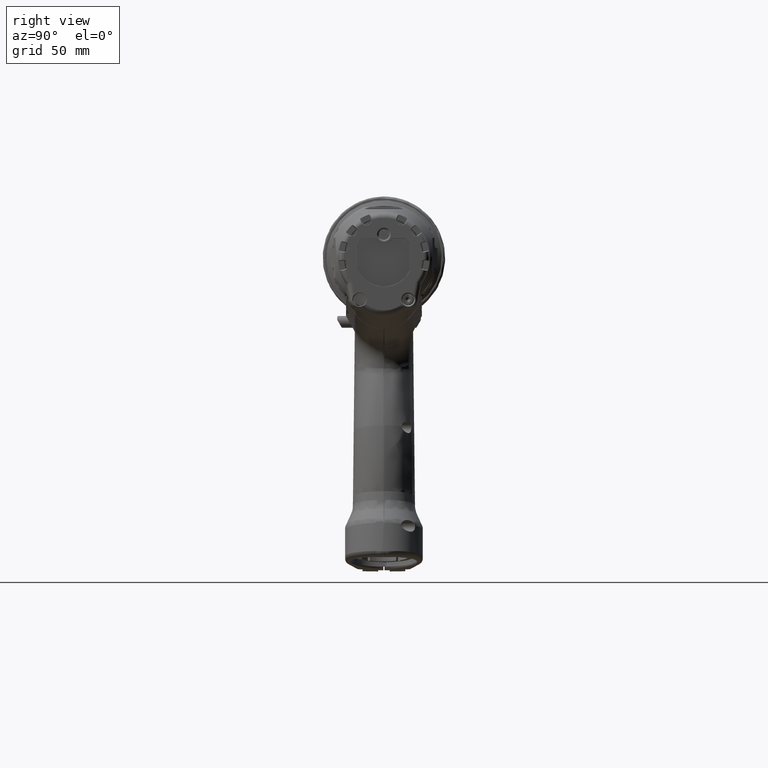
[diagram: clean part render]
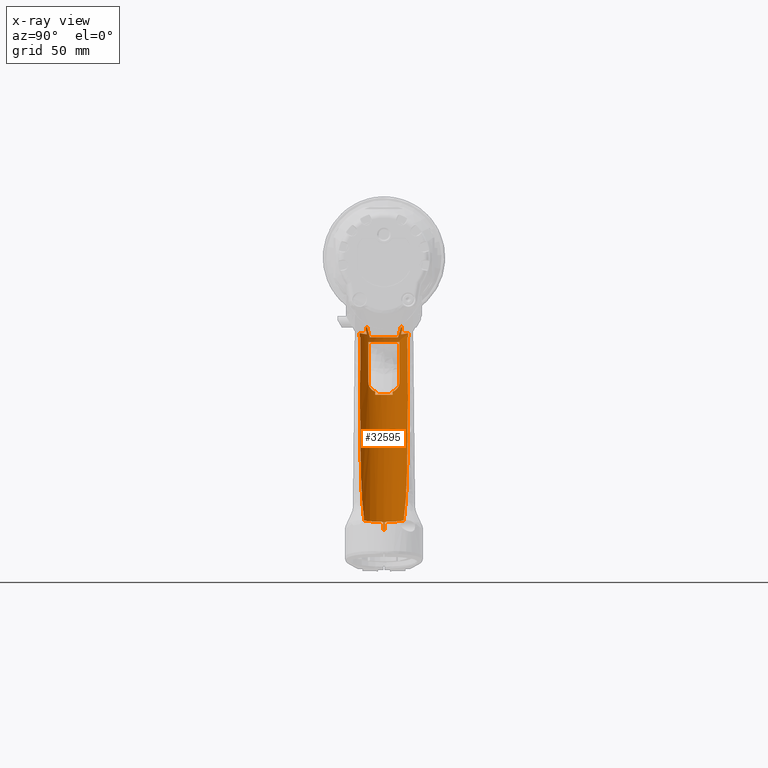
[diagram: x-ray — body ghosted, one internal face saturated and labeled with its STEP entity id]
A machine part, right view, then the same camera in x-ray: the body is ghosted and one INTERNAL B-rep face — a face not visible from any outside direction — is saturated and labeled: STEP entity #32595.
In plain terms, the highlighted cylindrical surface (edge-blend (fillet) strip) has radius 15 mm, axis along (-0.1736, -0, 0.9848).
Its self-contained STEP definition (entity closure, byte-faithful):
#444=ELLIPSE('',#34494,86.3815572471534,15.);
#445=ELLIPSE('',#34498,15.2313991782862,15.);
#446=ELLIPSE('',#34500,86.3815572471534,15.);
#449=ELLIPSE('',#34519,15.2313991782882,15.);
#450=ELLIPSE('',#34534,15.2313991782882,15.);
#451=ELLIPSE('',#34564,86.3815572471524,15.);
#452=ELLIPSE('',#34566,15.2313991782862,15.);
#453=ELLIPSE('',#34567,1401.37150129969,15.);
#454=ELLIPSE('',#34571,1401.3715012996,15.);
#455=ELLIPSE('',#34572,15.2313991782862,15.);
#456=ELLIPSE('',#34574,86.3815572471524,15.);
#550=FACE_BOUND('',#8092,.T.);
#551=FACE_BOUND('',#8093,.T.);
#686=CYLINDRICAL_SURFACE('',#34563,15.);
#1636=LINE('',#50090,#3619);
#1642=LINE('',#50115,#3625);
#1668=LINE('',#50191,#3651);
#1672=LINE('',#50211,#3655);
#1718=LINE('',#50606,#3701);
#1719=LINE('',#50630,#3702);
#1720=LINE('',#50634,#3703);
#1721=LINE('',#50656,#3704);
#1722=LINE('',#50708,#3705);
#1723=LINE('',#50710,#3706);
#1724=LINE('',#50747,#3707);
#1725=LINE('',#50748,#3708);
#3619=VECTOR('',#37961,10.);
#3625=VECTOR('',#37973,10.);
#3651=VECTOR('',#38023,10.);
#3655=VECTOR('',#38033,10.);
#3701=VECTOR('',#38133,10.);
#3702=VECTOR('',#38140,10.);
#3703=VECTOR('',#38143,10.);
#3704=VECTOR('',#38150,10.);
#3705=VECTOR('',#38155,10.);
#3706=VECTOR('',#38156,10.);
#3707=VECTOR('',#38157,10.);
#3708=VECTOR('',#38158,10.);
#6290=FACE_OUTER_BOUND('',#8091,.T.);
#8091=EDGE_LOOP('',(#21379,#21380,#21381,#21382,#21383,#21384,#21385,#21386,
#21387,#21388,#21389,#21390,#21391,#21392,#21393,#21394,#21395,#21396,#21397,
#21398,#21399,#21400,#21401,#21402));
#8092=EDGE_LOOP('',(#21403,#21404,#21405,#21406,#21407,#21408,#21409,#21410));
#8093=EDGE_LOOP('',(#21411,#21412,#21413,#21414,#21415,#21416));
#9980=CIRCLE('',#34565,15.);
#9981=CIRCLE('',#34568,15.);
#9982=CIRCLE('',#34569,15.);
#9983=CIRCLE('',#34570,15.);
#9984=CIRCLE('',#34573,15.);
#11392=B_SPLINE_CURVE_WITH_KNOTS('',3,(#49820,#49821,#49822,#49823,#49824,
#49825,#49826,#49827,#49828,#49829,#49830,#49831),.UNSPECIFIED.,.F.,.F.,
(4,2,2,2,2,4),(2.06398593074475,2.08806860412954,2.17715574143302,2.2662428787365,
2.35533001603999,2.3566038563648),.UNSPECIFIED.);
#11400=B_SPLINE_CURVE_WITH_KNOTS('',3,(#50100,#50101,#50102,#50103,#50104,
#50105,#50106,#50107,#50108,#50109),.UNSPECIFIED.,.F.,.F.,(4,2,2,2,4),(0.,
0.194645908673582,0.389291817347165,0.594248062491038,0.628332812300489),
 .UNSPECIFIED.);
#11402=B_SPLINE_CURVE_WITH_KNOTS('',3,(#50197,#50198,#50199,#50200,#50201,
#50202,#50203,#50204,#50205,#50206),.UNSPECIFIED.,.F.,.F.,(4,2,2,2,4),(0.960530791314474,
0.994615541123928,1.1995717862678,1.39421769494138,1.58886360361497),
 .UNSPECIFIED.);
#11421=B_SPLINE_CURVE_WITH_KNOTS('',3,(#50612,#50613,#50614,#50615,#50616,
#50617),.UNSPECIFIED.,.F.,.F.,(4,2,4),(-0.820388210379164,-0.400238975198767,
-2.04364889306927E-5),.UNSPECIFIED.);
#11422=B_SPLINE_CURVE_WITH_KNOTS('',3,(#50619,#50620,#50621,#50622,#50623,
#50624,#50625,#50626),.UNSPECIFIED.,.F.,.F.,(4,2,2,4),(-5.66049747857771,
-4.18137460307324,-2.65873976973449,-0.20629411666922),.UNSPECIFIED.);
#11423=B_SPLINE_CURVE_WITH_KNOTS('',3,(#50638,#50639,#50640,#50641,#50642,
#50643),.UNSPECIFIED.,.F.,.F.,(4,2,4),(-4.1109452337201,-1.4182691890105,
-0.108709009254017),.UNSPECIFIED.);
#11424=B_SPLINE_CURVE_WITH_KNOTS('',3,(#50645,#50646,#50647,#50648,#50649,
#50650),.UNSPECIFIED.,.F.,.F.,(4,2,4),(-0.918071663444417,-0.501621755374436,
-4.19324297199401E-5),.UNSPECIFIED.);
#11425=B_SPLINE_CURVE_WITH_KNOTS('',3,(#50661,#50662,#50663,#50664,#50665,
#50666,#50667,#50668,#50669,#50670,#50671,#50672,#50673),.UNSPECIFIED.,
 .F.,.F.,(4,2,2,3,2,4),(-0.179448114931779,-0.178174274606963,-0.0890871373034816,
0.,0.089087137303482,0.11316981068827),.UNSPECIFIED.);
#11426=B_SPLINE_CURVE_WITH_KNOTS('',3,(#50676,#50677,#50678,#50679,#50680,
#50681,#50682,#50683,#50684,#50685,#50686,#50687,#50688,#50689,#50690,#50691,
#50692,#50693,#50694,#50695,#50696,#50697,#50698,#50699,#50700,#50701,#50702,
#50703,#50704,#50705,#50706),.UNSPECIFIED.,.F.,.F.,(4,2,2,2,2,2,2,3,2,2,
2,2,2,2,4),(-0.904629334761814,-0.89829016586101,-0.606273397224084,-0.486427717683922,
-0.366582038143759,-0.18329101907188,-0.0916455095359403,0.,0.0916455095359396,
0.183291019071879,0.366582038143758,0.486427717683921,0.606273397224083,
0.89829016586101,0.904629334761994),.UNSPECIFIED.);
#11427=B_SPLINE_CURVE_WITH_KNOTS('',3,(#50712,#50713,#50714,#50715,#50716,
#50717,#50718,#50719,#50720,#50721,#50722,#50723,#50724,#50725,#50726,#50727,
#50728,#50729,#50730,#50731,#50732,#50733,#50734,#50735,#50736,#50737,#50738,
#50739,#50740,#50741,#50742,#50743,#50744,#50745),.UNSPECIFIED.,.F.,.F.,
(4,2,2,2,2,2,2,2,2,2,2,2,2,2,2,2,4),(0.543894088667082,0.606741696875559,
0.82732408490115,1.04790647292674,1.26848886095233,1.43940628553289,1.52007140928184,
1.58735978954207,1.6546481698023,1.72193655006253,1.78922493032276,1.86989005407171,
2.04080747865227,2.26138986667786,2.48197225470345,2.70255464272904,2.76540225093764),
 .UNSPECIFIED.);
#12663=VERTEX_POINT('',#49659);
#12664=VERTEX_POINT('',#49660);
#12678=VERTEX_POINT('',#49739);
#12682=VERTEX_POINT('',#49749);
#12702=VERTEX_POINT('',#49818);
#12725=VERTEX_POINT('',#50078);
#12726=VERTEX_POINT('',#50079);
#12730=VERTEX_POINT('',#50089);
#12734=VERTEX_POINT('',#50099);
#12736=VERTEX_POINT('',#50114);
#12765=VERTEX_POINT('',#50182);
#12768=VERTEX_POINT('',#50190);
#12770=VERTEX_POINT('',#50196);
#12828=VERTEX_POINT('',#50601);
#12829=VERTEX_POINT('',#50603);
#12830=VERTEX_POINT('',#50605);
#12831=VERTEX_POINT('',#50607);
#12832=VERTEX_POINT('',#50609);
#12833=VERTEX_POINT('',#50611);
#12834=VERTEX_POINT('',#50618);
#12835=VERTEX_POINT('',#50627);
#12836=VERTEX_POINT('',#50629);
#12837=VERTEX_POINT('',#50631);
#12838=VERTEX_POINT('',#50633);
#12839=VERTEX_POINT('',#50635);
#12840=VERTEX_POINT('',#50637);
#12841=VERTEX_POINT('',#50644);
#12842=VERTEX_POINT('',#50651);
#12843=VERTEX_POINT('',#50653);
#12844=VERTEX_POINT('',#50655);
#12845=VERTEX_POINT('',#50657);
#12846=VERTEX_POINT('',#50659);
#12847=VERTEX_POINT('',#50674);
#12848=VERTEX_POINT('',#50675);
#12849=VERTEX_POINT('',#50707);
#12850=VERTEX_POINT('',#50709);
#12851=VERTEX_POINT('',#50711);
#12852=VERTEX_POINT('',#50746);
#15990=EDGE_CURVE('',#12663,#12664,#444,.T.);
#16006=EDGE_CURVE('',#12664,#12678,#445,.T.);
#16011=EDGE_CURVE('',#12678,#12682,#446,.T.);
#16036=EDGE_CURVE('',#12702,#12682,#11392,.T.);
#16073=EDGE_CURVE('',#12725,#12726,#449,.T.);
#16078=EDGE_CURVE('',#12726,#12730,#1636,.T.);
#16083=EDGE_CURVE('',#12730,#12734,#11400,.T.);
#16086=EDGE_CURVE('',#12734,#12736,#1642,.T.);
#16116=EDGE_CURVE('',#12736,#12765,#450,.T.);
#16120=EDGE_CURVE('',#12765,#12768,#1668,.T.);
#16123=EDGE_CURVE('',#12768,#12770,#11402,.T.);
#16126=EDGE_CURVE('',#12770,#12725,#1672,.T.);
#16199=EDGE_CURVE('',#12828,#12702,#451,.T.);
#16200=EDGE_CURVE('',#12829,#12828,#9980,.T.);
#16201=EDGE_CURVE('',#12830,#12829,#1718,.T.);
#16202=EDGE_CURVE('',#12831,#12830,#452,.T.);
#16203=EDGE_CURVE('',#12832,#12831,#453,.T.);
#16204=EDGE_CURVE('',#12833,#12832,#11421,.T.);
#16205=EDGE_CURVE('',#12834,#12833,#11422,.T.);
#16206=EDGE_CURVE('',#12835,#12834,#9981,.T.);
#16207=EDGE_CURVE('',#12836,#12835,#1719,.T.);
#16208=EDGE_CURVE('',#12837,#12836,#9982,.T.);
#16209=EDGE_CURVE('',#12838,#12837,#1720,.T.);
#16210=EDGE_CURVE('',#12839,#12838,#9983,.T.);
#16211=EDGE_CURVE('',#12840,#12839,#11423,.T.);
#16212=EDGE_CURVE('',#12841,#12840,#11424,.T.);
#16213=EDGE_CURVE('',#12842,#12841,#454,.T.);
#16214=EDGE_CURVE('',#12843,#12842,#455,.T.);
#16215=EDGE_CURVE('',#12844,#12843,#1721,.T.);
#16216=EDGE_CURVE('',#12845,#12844,#9984,.T.);
#16217=EDGE_CURVE('',#12846,#12845,#456,.T.);
#16218=EDGE_CURVE('',#12663,#12846,#11425,.T.);
#16219=EDGE_CURVE('',#12847,#12848,#11426,.T.);
#16220=EDGE_CURVE('',#12849,#12847,#1722,.T.);
#16221=EDGE_CURVE('',#12850,#12849,#1723,.T.);
#16222=EDGE_CURVE('',#12851,#12850,#11427,.T.);
#16223=EDGE_CURVE('',#12852,#12851,#1724,.T.);
#16224=EDGE_CURVE('',#12848,#12852,#1725,.T.);
#21379=ORIENTED_EDGE('',*,*,#16011,.T.);
#21380=ORIENTED_EDGE('',*,*,#16036,.F.);
#21381=ORIENTED_EDGE('',*,*,#16199,.F.);
#21382=ORIENTED_EDGE('',*,*,#16200,.F.);
#21383=ORIENTED_EDGE('',*,*,#16201,.F.);
#21384=ORIENTED_EDGE('',*,*,#16202,.F.);
#21385=ORIENTED_EDGE('',*,*,#16203,.F.);
#21386=ORIENTED_EDGE('',*,*,#16204,.F.);
#21387=ORIENTED_EDGE('',*,*,#16205,.F.);
#21388=ORIENTED_EDGE('',*,*,#16206,.F.);
#21389=ORIENTED_EDGE('',*,*,#16207,.F.);
#21390=ORIENTED_EDGE('',*,*,#16208,.F.);
#21391=ORIENTED_EDGE('',*,*,#16209,.F.);
#21392=ORIENTED_EDGE('',*,*,#16210,.F.);
#21393=ORIENTED_EDGE('',*,*,#16211,.F.);
#21394=ORIENTED_EDGE('',*,*,#16212,.F.);
#21395=ORIENTED_EDGE('',*,*,#16213,.F.);
#21396=ORIENTED_EDGE('',*,*,#16214,.F.);
#21397=ORIENTED_EDGE('',*,*,#16215,.F.);
#21398=ORIENTED_EDGE('',*,*,#16216,.F.);
#21399=ORIENTED_EDGE('',*,*,#16217,.F.);
#21400=ORIENTED_EDGE('',*,*,#16218,.F.);
#21401=ORIENTED_EDGE('',*,*,#15990,.T.);
#21402=ORIENTED_EDGE('',*,*,#16006,.T.);
#21403=ORIENTED_EDGE('',*,*,#16073,.T.);
#21404=ORIENTED_EDGE('',*,*,#16078,.T.);
#21405=ORIENTED_EDGE('',*,*,#16083,.T.);
#21406=ORIENTED_EDGE('',*,*,#16086,.T.);
#21407=ORIENTED_EDGE('',*,*,#16116,.T.);
#21408=ORIENTED_EDGE('',*,*,#16120,.T.);
#21409=ORIENTED_EDGE('',*,*,#16123,.T.);
#21410=ORIENTED_EDGE('',*,*,#16126,.T.);
#21411=ORIENTED_EDGE('',*,*,#16219,.F.);
#21412=ORIENTED_EDGE('',*,*,#16220,.F.);
#21413=ORIENTED_EDGE('',*,*,#16221,.F.);
#21414=ORIENTED_EDGE('',*,*,#16222,.F.);
#21415=ORIENTED_EDGE('',*,*,#16223,.F.);
#21416=ORIENTED_EDGE('',*,*,#16224,.F.);
#32595=ADVANCED_FACE('',(#6290,#550,#551),#686,.T.);
#34494=AXIS2_PLACEMENT_3D('',#49661,#37844,#37845);
#34498=AXIS2_PLACEMENT_3D('',#49740,#37864,#37865);
#34500=AXIS2_PLACEMENT_3D('',#49750,#37872,#37873);
#34519=AXIS2_PLACEMENT_3D('',#50080,#37953,#37954);
#34534=AXIS2_PLACEMENT_3D('',#50183,#38016,#38017);
#34563=AXIS2_PLACEMENT_3D('',#50600,#38127,#38128);
#34564=AXIS2_PLACEMENT_3D('',#50602,#38129,#38130);
#34565=AXIS2_PLACEMENT_3D('',#50604,#38131,#38132);
#34566=AXIS2_PLACEMENT_3D('',#50608,#38134,#38135);
#34567=AXIS2_PLACEMENT_3D('',#50610,#38136,#38137);
#34568=AXIS2_PLACEMENT_3D('',#50628,#38138,#38139);
#34569=AXIS2_PLACEMENT_3D('',#50632,#38141,#38142);
#34570=AXIS2_PLACEMENT_3D('',#50636,#38144,#38145);
#34571=AXIS2_PLACEMENT_3D('',#50652,#38146,#38147);
#34572=AXIS2_PLACEMENT_3D('',#50654,#38148,#38149);
#34573=AXIS2_PLACEMENT_3D('',#50658,#38151,#38152);
#34574=AXIS2_PLACEMENT_3D('',#50660,#38153,#38154);
#37844=DIRECTION('center_axis',(1.,4.44089209850063E-16,-3.5527136788005E-15));
#37845=DIRECTION('ref_axis',(3.5577969696675E-15,-2.82756034044042E-16,
1.));
#37864=DIRECTION('center_axis',(-2.96059473233375E-15,-3.32470563394478E-15,
-1.));
#37865=DIRECTION('ref_axis',(1.,2.14297823475809E-14,-2.95113518277147E-15));
#37872=DIRECTION('center_axis',(1.,4.44089209850063E-16,-3.5527136788005E-15));
#37873=DIRECTION('ref_axis',(3.5577969696675E-15,-2.82756034044042E-16,
1.));
#37953=DIRECTION('center_axis',(7.46069872548105E-13,-3.839706329053E-12,
1.));
#37954=DIRECTION('ref_axis',(1.,-2.17731690980524E-11,-7.46085680988683E-13));
#37961=DIRECTION('',(0.173648177666929,3.5527136788005E-16,-0.984807753012208));
#37973=DIRECTION('',(0.173648175116826,8.23389762348352E-9,-0.98480775346186));
#38016=DIRECTION('center_axis',(-7.46069872548105E-13,4.32836066394368E-14,
-1.));
#38017=DIRECTION('ref_axis',(1.,-2.42943757022034E-13,-7.46076706603696E-13));
#38023=DIRECTION('',(-0.173648175204083,7.95216694062538E-9,0.984807753446474));
#38033=DIRECTION('',(-0.173648177489996,2.84956970060315E-10,0.984807753043406));
#38127=DIRECTION('center_axis',(-0.173648177666929,-3.5527136788005E-16,
0.984807753012208));
#38128=DIRECTION('ref_axis',(-0.984807753012208,-6.10065562881938E-11,-0.173648177666929));
#38129=DIRECTION('center_axis',(1.,4.45213698701447E-16,-5.60662627435704E-15));
#38130=DIRECTION('ref_axis',(5.60404125212837E-15,-2.82756034044045E-16,
1.));
#38131=DIRECTION('center_axis',(-0.173648177666927,-7.73105474518302E-17,
0.984807753012209));
#38132=DIRECTION('ref_axis',(0.88014954044603,-0.448610715823331,0.15519411103879));
#38133=DIRECTION('',(-0.173648177666929,-3.5527136788005E-16,0.984807753012208));
#38134=DIRECTION('center_axis',(-5.11514273595494E-15,5.11286919234978E-17,
-1.));
#38135=DIRECTION('ref_axis',(1.,5.46678121111758E-15,-5.11367624364092E-15));
#38136=DIRECTION('center_axis',(9.13053159947863E-17,0.999940931510034,
0.0108689231685963));
#38137=DIRECTION('ref_axis',(-0.173658126073142,-0.0107037807367991,0.984747827784709));
#38138=DIRECTION('center_axis',(0.173648177666744,2.20014540443848E-16,
-0.984807753012241));
#38139=DIRECTION('ref_axis',(0.88014954044603,-0.448610715823331,0.15519411103879));
#38140=DIRECTION('',(-0.173648177666929,-3.5527136788005E-16,0.984807753012208));
#38141=DIRECTION('center_axis',(0.173648177666929,3.19189119579732E-16,
-0.984807753012208));
#38142=DIRECTION('ref_axis',(0.88014954044603,-0.448610715823331,0.15519411103879));
#38143=DIRECTION('',(0.173648177666929,3.5527136788005E-16,-0.984807753012208));
#38144=DIRECTION('center_axis',(0.173648177666825,-2.50832405641071E-16,
-0.984807753012227));
#38145=DIRECTION('ref_axis',(0.88014954044603,-0.448610715823331,0.15519411103879));
#38146=DIRECTION('center_axis',(1.8321572810006E-16,-0.999940931510034,
0.0108689231685963));
#38147=DIRECTION('ref_axis',(0.173658126073142,-0.0107037807367991,-0.984747827784709));
#38148=DIRECTION('center_axis',(-6.68446536557495E-15,5.11286919235725E-17,
-1.));
#38149=DIRECTION('ref_axis',(1.,2.62405498133644E-15,-6.66614707235575E-15));
#38150=DIRECTION('',(0.173648177666929,3.5527136788005E-16,-0.984807753012208));
#38151=DIRECTION('center_axis',(-0.173648177666927,-7.73105474518302E-17,
0.984807753012209));
#38152=DIRECTION('ref_axis',(0.88014954044603,-0.448610715823331,0.15519411103879));
#38153=DIRECTION('center_axis',(1.,4.45213698701447E-16,-5.60662627435704E-15));
#38154=DIRECTION('ref_axis',(5.60404125212837E-15,-2.82756034044045E-16,
1.));
#38155=DIRECTION('',(-0.173648177666929,-3.5527136788005E-16,0.984807753012208));
#38156=DIRECTION('',(-0.173648177666929,-3.5527136788005E-16,0.984807753012208));
#38157=DIRECTION('',(-0.173648177666929,-3.5527136788005E-16,0.984807753012208));
#38158=DIRECTION('',(-0.173648177666929,-3.5527136788005E-16,0.984807753012208));
#49659=CARTESIAN_POINT('',(19.9999999999999,-8.75297742922353,-35.4603921945624));
#49660=CARTESIAN_POINT('',(20.,-7.22867541842113,-40.9999999987489));
#49661=CARTESIAN_POINT('Origin',(20.0000000000002,-1.67645624966126E-14,
34.6892298663237));
#49739=CARTESIAN_POINT('',(20.,7.22867541842113,-40.999999998749));
#49740=CARTESIAN_POINT('Origin',(33.3460533742574,1.05404786606117E-14,
-40.999999998749));
#49749=CARTESIAN_POINT('',(19.9999999999999,8.75297742922353,-35.4603921945624));
#49750=CARTESIAN_POINT('Origin',(20.0000000000002,-1.67645624966126E-14,
34.6892298663237));
#49818=CARTESIAN_POINT('',(20.7380337985005,9.11348611720206,-38.1065949215645));
#49820=CARTESIAN_POINT('Ctrl Pts',(20.7380337985005,9.11348611720205,-38.1065949215644));
#49821=CARTESIAN_POINT('Ctrl Pts',(20.7535046695222,9.15041440901976,-38.0316619797638));
#49822=CARTESIAN_POINT('Ctrl Pts',(20.7664260538612,9.18420240487056,-37.9545325068864));
#49823=CARTESIAN_POINT('Ctrl Pts',(20.8131000622541,9.32568326056648,-37.584959852787));
#49824=CARTESIAN_POINT('Ctrl Pts',(20.8059893225242,9.38406800101402,-37.2715011453659));
#49825=CARTESIAN_POINT('Ctrl Pts',(20.7028571955488,9.38406800101402,-36.6866097886317));
#49826=CARTESIAN_POINT('Ctrl Pts',(20.6023299131625,9.32568326056647,-36.3896229381255));
#49827=CARTESIAN_POINT('Ctrl Pts',(20.3342721751171,9.10293614557984,-35.867991576316));
#49828=CARTESIAN_POINT('Ctrl Pts',(20.1678761765786,8.93876293658431,-35.6426841533151));
#49829=CARTESIAN_POINT('Ctrl Pts',(20.0046228386326,8.75810441062116,-35.4653870926103));
#49830=CARTESIAN_POINT('Ctrl Pts',(20.0023147024142,8.75554645136063,-35.4628889222657));
#49831=CARTESIAN_POINT('Ctrl Pts',(19.9999999999998,8.75297742922354,-35.4603921945624));
#50078=CARTESIAN_POINT('',(20.9025515284869,8.00000000627411,-43.4999999986911));
#50079=CARTESIAN_POINT('',(20.9025515247676,-8.00000000044768,-43.4999999987525));
#50080=CARTESIAN_POINT('Origin',(33.7868708260254,1.14423586640715E-14,
-43.4999999987314));
#50089=CARTESIAN_POINT('',(24.5172546294457,-8.00000000068645,-63.9999999987626));
#50090=CARTESIAN_POINT('',(37.7272866513782,-8.00000000155905,-138.917814438149));
#50099=CARTESIAN_POINT('',(23.7382626664188,-4.50000001387178,-68.9142649430729));
#50100=CARTESIAN_POINT('Ctrl Pts',(24.5172546290052,-7.99999999999818,-63.9999999987636));
#50101=CARTESIAN_POINT('Ctrl Pts',(24.6299209867769,-7.99999999999818,-64.6389626652765));
#50102=CARTESIAN_POINT('Ctrl Pts',(24.6678788780906,-7.8739923932074,-65.3268362452525));
#50103=CARTESIAN_POINT('Ctrl Pts',(24.5830195019933,-7.3596782083227,-66.5913764495583));
#50104=CARTESIAN_POINT('Ctrl Pts',(24.4647691255405,-6.97169261380877,-67.1684759135918));
#50105=CARTESIAN_POINT('Ctrl Pts',(24.1839688672977,-6.06440057667355,-68.1024006965762));
#50106=CARTESIAN_POINT('Ctrl Pts',(24.0003122474228,-5.47603847695812,-68.5137992944235));
#50107=CARTESIAN_POINT('Ctrl Pts',(23.79579443887,-4.72000347970518,-68.8339727284071));
#50108=CARTESIAN_POINT('Ctrl Pts',(23.7668364610979,-4.61060547964157,-68.876003007567));
#50109=CARTESIAN_POINT('Ctrl Pts',(23.7382626666637,-4.50000001412825,-68.9142649439971));
#50114=CARTESIAN_POINT('',(24.0178705366565,-4.5000000003006,-70.4999999987517));
#50115=CARTESIAN_POINT('',(23.831548204103,-4.50000000913547,-69.4433135255522));
#50182=CARTESIAN_POINT('',(24.0178705368015,4.5000000007543,-70.4999999987522));
#50183=CARTESIAN_POINT('Origin',(38.5476993051596,2.11826627015172E-14,
-70.4999999987633));
#50190=CARTESIAN_POINT('',(23.7382626664189,4.50000001387183,-68.914264943073));
#50191=CARTESIAN_POINT('',(23.83154820415,4.50000000928687,-69.4433135255442));
#50196=CARTESIAN_POINT('',(24.5172546292254,8.00000000034238,-63.9999999987628));
#50197=CARTESIAN_POINT('Ctrl Pts',(23.7382626666638,4.50000001412831,-68.9142649439973));
#50198=CARTESIAN_POINT('Ctrl Pts',(23.7668364610979,4.61060547964164,-68.8760030075671));
#50199=CARTESIAN_POINT('Ctrl Pts',(23.7957944388701,4.72000347970525,-68.8339727284072));
#50200=CARTESIAN_POINT('Ctrl Pts',(24.0003122474229,5.4760384769582,-68.5137992944236));
#50201=CARTESIAN_POINT('Ctrl Pts',(24.1839688672978,6.06440057667363,-68.1024006965763));
#50202=CARTESIAN_POINT('Ctrl Pts',(24.4647691255405,6.97169261380885,-67.1684759135919));
#50203=CARTESIAN_POINT('Ctrl Pts',(24.5830195019934,7.35967820832279,-66.5913764495584));
#50204=CARTESIAN_POINT('Ctrl Pts',(24.6678788780907,7.87399239320748,-65.3268362452525));
#50205=CARTESIAN_POINT('Ctrl Pts',(24.6299209867769,7.99999999999825,-64.6389626652766));
#50206=CARTESIAN_POINT('Ctrl Pts',(24.5172546290053,7.99999999999825,-63.9999999987637));
#50211=CARTESIAN_POINT('',(22.698609121072,8.00000000332678,-53.6859487812068));
#50600=CARTESIAN_POINT('Origin',(50.2230961869414,4.50696638578967E-14,
-136.714466071235));
#50601=CARTESIAN_POINT('',(20.7380337985005,8.7984856001629,-39.4569329589173));
#50602=CARTESIAN_POINT('Origin',(20.7380337985009,-1.52545997624343E-14,
30.5036322026236));
#50603=CARTESIAN_POINT('',(24.5364005419121,12.5,-38.7871784194281));
#50604=CARTESIAN_POINT('Origin',(32.7019950603483,9.2227828387996E-15,-37.3473637923027));
#50605=CARTESIAN_POINT('',(24.9265806898377,12.4999999999983,-40.9999999987495));
#50606=CARTESIAN_POINT('',(42.0575016685025,12.4999999999982,-138.154280698361));
#50607=CARTESIAN_POINT('',(24.2512885335182,12.0324314797027,-40.9999999988154));
#50608=CARTESIAN_POINT('Origin',(33.3460533742574,1.05404786606118E-14,
-40.9999999987491));
#50609=CARTESIAN_POINT('',(30.2771372744505,12.3739647754066,-72.4210588286045));
#50610=CARTESIAN_POINT('Origin',(-161.845039458142,-3.88806105221075E-13,
1065.98369613296));
#50611=CARTESIAN_POINT('',(31.5527273806786,12.2581487184831,-80.613273256995));
#50612=CARTESIAN_POINT('Ctrl Pts',(31.5526994635236,12.2583037963314,-80.613276940658));
#50613=CARTESIAN_POINT('Ctrl Pts',(31.2482158451118,12.2411889005044,-79.0262220980803));
#50614=CARTESIAN_POINT('Ctrl Pts',(31.0901412629111,12.2603018676482,-77.9753670579424));
#50615=CARTESIAN_POINT('Ctrl Pts',(30.702745470582,12.3403014025326,-75.1181045891273));
#50616=CARTESIAN_POINT('Ctrl Pts',(30.5294783904431,12.3883843565181,-73.7309649124145));
#50617=CARTESIAN_POINT('Ctrl Pts',(30.2771372740978,12.3739647753075,-72.4210588286735));
#50618=CARTESIAN_POINT('',(38.7888154285025,10.1862214366593,-135.276938110604));
#50619=CARTESIAN_POINT('Ctrl Pts',(38.7888154284622,10.1862214366231,-135.2769381106));
#50620=CARTESIAN_POINT('Ctrl Pts',(38.6344606813882,10.7668488892287,-131.308292684175));
#50621=CARTESIAN_POINT('Ctrl Pts',(38.2685325121519,11.1523141810179,-126.739669033202));
#50622=CARTESIAN_POINT('Ctrl Pts',(37.1679982855609,11.7286472049079,-116.587675754914));
#50623=CARTESIAN_POINT('Ctrl Pts',(36.43855127122,11.8987540217001,-111.14669966979));
#50624=CARTESIAN_POINT('Ctrl Pts',(34.4809115589564,12.1897361048421,-97.8048135542176));
#50625=CARTESIAN_POINT('Ctrl Pts',(32.9814198044789,12.2467706957419,-88.8101085792524));
#50626=CARTESIAN_POINT('Ctrl Pts',(31.5513402416841,12.2573306256909,-80.6135142205022));
#50627=CARTESIAN_POINT('',(34.8633170980498,0.299999998258194,-135.969109378988));
#50628=CARTESIAN_POINT('Origin',(49.6324786745067,4.38613039755428E-14,
-133.364907710616));
#50629=CARTESIAN_POINT('',(35.6275827881857,0.299999999998221,-140.303475492613));
#50630=CARTESIAN_POINT('',(35.4539346105187,0.299999999998221,-139.318667739601));
#50631=CARTESIAN_POINT('',(35.6275827881857,-0.299999999998151,-140.303475492613));
#50632=CARTESIAN_POINT('Origin',(50.3967443646084,4.50696638578967E-14,
-137.699273824247));
#50633=CARTESIAN_POINT('',(34.8633170981093,-0.300000001293975,-135.969109378976));
#50634=CARTESIAN_POINT('',(35.4539346105187,-0.299999999998151,-139.318667739601));
#50635=CARTESIAN_POINT('',(38.7888154322588,-10.1862214402243,-135.276938109939));
#50636=CARTESIAN_POINT('Origin',(49.6324786745064,4.38613039755421E-14,
-133.364907710614));
#50637=CARTESIAN_POINT('',(31.5511727626105,-12.2578541942758,-80.6131172001667));
#50638=CARTESIAN_POINT('Ctrl Pts',(31.5512679571992,-12.2573311594126,-80.6130999175701));
#50639=CARTESIAN_POINT('Ctrl Pts',(33.9524907885563,-12.2396028518266,-94.3758433234684));
#50640=CARTESIAN_POINT('Ctrl Pts',(36.2464751260538,-12.1112270350889,-108.686632423649));
#50641=CARTESIAN_POINT('Ctrl Pts',(38.1805259225223,-11.2371369365914,-125.69537842382));
#50642=CARTESIAN_POINT('Ctrl Pts',(38.6165067938874,-10.8343850042403,-130.846676732508));
#50643=CARTESIAN_POINT('Ctrl Pts',(38.7888154284517,-10.186221436802,-135.276938109587));
#50644=CARTESIAN_POINT('',(30.2770375619178,-12.3739591831353,-72.4205403330044));
#50645=CARTESIAN_POINT('Ctrl Pts',(30.2770373924101,-12.3739590647139,-72.4205403669667));
#50646=CARTESIAN_POINT('Ctrl Pts',(30.5206519542278,-12.3878947791446,-73.6850225997282));
#50647=CARTESIAN_POINT('Ctrl Pts',(30.6907956758804,-12.3436004778226,-75.0227436737842));
#50648=CARTESIAN_POINT('Ctrl Pts',(31.08715626985,-12.2600230945368,-77.9611324155558));
#50649=CARTESIAN_POINT('Ctrl Pts',(31.2376392647885,-12.2406001806575,-78.9710465558439));
#50650=CARTESIAN_POINT('Ctrl Pts',(31.5526148198454,-12.2582990393253,-80.6128357474503));
#50651=CARTESIAN_POINT('',(24.251288533521,-12.0324314797027,-40.9999999988308));
#50652=CARTESIAN_POINT('Origin',(-161.845039458128,-3.88806105221047E-13,
1065.98369613288));
#50653=CARTESIAN_POINT('',(24.9265806913888,-12.5000000010117,-40.9999999987487));
#50654=CARTESIAN_POINT('Origin',(33.3460533742573,1.05404786606115E-14,
-40.9999999987483));
#50655=CARTESIAN_POINT('',(24.536400541912,-12.5,-38.7871784194282));
#50656=CARTESIAN_POINT('',(42.0575016700072,-12.5000000010116,-138.154280698095));
#50657=CARTESIAN_POINT('',(20.7380337985005,-8.7984856001629,-39.4569329589173));
#50658=CARTESIAN_POINT('Origin',(32.7019950603483,9.2227828387996E-15,-37.3473637923027));
#50659=CARTESIAN_POINT('',(20.7380337985005,-9.11348611720205,-38.1065949215645));
#50660=CARTESIAN_POINT('Origin',(20.7380337985009,-1.52545997624343E-14,
30.5036322026236));
#50661=CARTESIAN_POINT('Ctrl Pts',(19.9999999999998,-8.75297742922353,-35.4603921945624));
#50662=CARTESIAN_POINT('Ctrl Pts',(20.0023147024142,-8.75554645136063,-35.4628889222657));
#50663=CARTESIAN_POINT('Ctrl Pts',(20.0046228386326,-8.75810441062117,-35.4653870926103));
#50664=CARTESIAN_POINT('Ctrl Pts',(20.1678761765786,-8.93876293658431,-35.6426841533151));
#50665=CARTESIAN_POINT('Ctrl Pts',(20.3342721751171,-9.10293614557984,-35.867991576316));
#50666=CARTESIAN_POINT('Ctrl Pts',(20.6023299131625,-9.32568326056647,-36.3896229381255));
#50667=CARTESIAN_POINT('Ctrl Pts',(20.7028571955488,-9.38406800101402,-36.6866097886317));
#50668=CARTESIAN_POINT('Ctrl Pts',(20.7544232590365,-9.38406800101402,-36.9790554669988));
#50669=CARTESIAN_POINT('Ctrl Pts',(20.8059893225242,-9.38406800101402,-37.2715011453659));
#50670=CARTESIAN_POINT('Ctrl Pts',(20.8131000622541,-9.32568326056648,-37.584959852787));
#50671=CARTESIAN_POINT('Ctrl Pts',(20.7664260538612,-9.18420240487056,-37.9545325068864));
#50672=CARTESIAN_POINT('Ctrl Pts',(20.7535046695222,-9.15041440901975,-38.0316619797638));
#50673=CARTESIAN_POINT('Ctrl Pts',(20.7380337985005,-9.11348611720204,-38.1065949215644));
#50674=CARTESIAN_POINT('',(26.7696676578955,2.99999999999823,-88.3397586237719));
#50675=CARTESIAN_POINT('',(28.2657225201421,2.99999999999823,-96.8243073651819));
#50676=CARTESIAN_POINT('Ctrl Pts',(26.7696676578954,2.99999999999828,-88.3397586237711));
#50677=CARTESIAN_POINT('Ctrl Pts',(26.77441746558,3.02243318849403,-88.3403258166316));
#50678=CARTESIAN_POINT('Ctrl Pts',(26.7792215717781,3.04485418500056,-88.3409071851022));
#50679=CARTESIAN_POINT('Ctrl Pts',(27.0078764950576,4.09948148225375,-88.3689597067262));
#50680=CARTESIAN_POINT('Ctrl Pts',(27.3531107173283,5.10202612831446,-88.4271460936061));
#50681=CARTESIAN_POINT('Ctrl Pts',(27.9310025127001,6.32978180281949,-88.6355744215234));
#50682=CARTESIAN_POINT('Ctrl Pts',(28.1319401789945,6.7108949834615,-88.7195228480041));
#50683=CARTESIAN_POINT('Ctrl Pts',(28.5644560789788,7.43296511102846,-88.9494228605595));
#50684=CARTESIAN_POINT('Ctrl Pts',(28.7957622532186,7.77367699753414,-89.0966540376479));
#50685=CARTESIAN_POINT('Ctrl Pts',(29.3447764775156,8.50461922139647,-89.5271508342025));
#50686=CARTESIAN_POINT('Ctrl Pts',(29.7149503039999,8.91699060201093,-89.8984272076004));
#50687=CARTESIAN_POINT('Ctrl Pts',(30.172815860142,9.33869526763761,-90.6098821709599));
#50688=CARTESIAN_POINT('Ctrl Pts',(30.3094779677853,9.44835420974215,-90.8721439467935));
#50689=CARTESIAN_POINT('Ctrl Pts',(30.5304352936519,9.59529232454645,-91.4300869149164));
#50690=CARTESIAN_POINT('Ctrl Pts',(30.6146840770897,9.6326999989325,-91.7257526460977));
#50691=CARTESIAN_POINT('Ctrl Pts',(30.667730996164,9.6326999989325,-92.0265966738302));
#50692=CARTESIAN_POINT('Ctrl Pts',(30.7207779152382,9.6326999989325,-92.3274407015627));
#50693=CARTESIAN_POINT('Ctrl Pts',(30.7427335908866,9.59529232454646,-92.6340903883595));
#50694=CARTESIAN_POINT('Ctrl Pts',(30.7259293561862,9.44835420974216,-93.2339571345857));
#50695=CARTESIAN_POINT('Ctrl Pts',(30.6872077922521,9.33869526763762,-93.5271437836941));
#50696=CARTESIAN_POINT('Ctrl Pts',(30.5002868363713,8.91699060201095,-94.3522920059201));
#50697=CARTESIAN_POINT('Ctrl Pts',(30.2794212216589,8.50461922139647,-94.8277845794639));
#50698=CARTESIAN_POINT('Ctrl Pts',(29.9107551824393,7.77367699753414,-95.4200931661401));
#50699=CARTESIAN_POINT('Ctrl Pts',(29.7437545056538,7.43296511102847,-95.6375565876653));
#50700=CARTESIAN_POINT('Ctrl Pts',(29.4159529413108,6.71089498346151,-96.0015210830855));
#50701=CARTESIAN_POINT('Ctrl Pts',(29.2558453519129,6.3297818028195,-96.1491315294014));
#50702=CARTESIAN_POINT('Ctrl Pts',(28.7840913827767,5.10202612831446,-96.542640725788));
#50703=CARTESIAN_POINT('Ctrl Pts',(28.4795782480464,4.09948148225375,-96.7153951023511));
#50704=CARTESIAN_POINT('Ctrl Pts',(28.2743074314007,3.04485418499992,-96.8199604395478));
#50705=CARTESIAN_POINT('Ctrl Pts',(28.2699918879843,3.02243318849275,-96.8221498483001));
#50706=CARTESIAN_POINT('Ctrl Pts',(28.2657225201363,2.99999999999637,-96.8243073651509));
#50707=CARTESIAN_POINT('',(27.0483167451138,2.99999999999822,-89.9200561261664));
#50708=CARTESIAN_POINT('',(35.7494372492406,2.99999999999822,-139.266562651524));
#50709=CARTESIAN_POINT('',(27.0676669201621,3.00000000000185,-90.0297964221198));
#50710=CARTESIAN_POINT('',(35.7494372492406,2.99999999999822,-139.266562651523));
#50711=CARTESIAN_POINT('',(27.9677232578763,3.00000000000185,-95.1342695668298));
#50712=CARTESIAN_POINT('Ctrl Pts',(27.9677232578734,3.00000000000041,-95.1342695668155));
#50713=CARTESIAN_POINT('Ctrl Pts',(27.9272374016145,2.77903631977981,-95.1644065788565));
#50714=CARTESIAN_POINT('Ctrl Pts',(27.8906320919615,2.55507116125787,-95.190032100633));
#50715=CARTESIAN_POINT('Ctrl Pts',(27.7457860696383,1.53992062009167,-95.2877979834607));
#50716=CARTESIAN_POINT('Ctrl Pts',(27.6920387294413,0.735274626751997,-95.3160467829064));
#50717=CARTESIAN_POINT('Ctrl Pts',(27.6920387294413,-0.735274626751939,
-95.3160467829064));
#50718=CARTESIAN_POINT('Ctrl Pts',(27.7457860696383,-1.53992062009161,-95.2877979834607));
#50719=CARTESIAN_POINT('Ctrl Pts',(27.9712419629777,-3.12002388051706,-95.1356233217234));
#50720=CARTESIAN_POINT('Ctrl Pts',(28.1426108731034,-3.89536988407465,-95.0100436579287));
#50721=CARTESIAN_POINT('Ctrl Pts',(28.4759726755513,-5.10811502022656,-94.6619883274388));
#50722=CARTESIAN_POINT('Ctrl Pts',(28.6732357348025,-5.71506604885781,-94.4168312539076));
#50723=CARTESIAN_POINT('Ctrl Pts',(28.9001837455799,-6.38418533754382,-93.9651253929256));
#50724=CARTESIAN_POINT('Ctrl Pts',(28.9818549412004,-6.62267602963994,-93.7637257886053));
#50725=CARTESIAN_POINT('Ctrl Pts',(29.0805848606588,-6.93888208866462,-93.3983615691052));
#50726=CARTESIAN_POINT('Ctrl Pts',(29.118209946356,-7.07421330811361,-93.1968326499563));
#50727=CARTESIAN_POINT('Ctrl Pts',(29.1439312623913,-7.26008505533946,-92.7605015662971));
#50728=CARTESIAN_POINT('Ctrl Pts',(29.1309869400419,-7.30987846212954,-92.5253208199988));
#50729=CARTESIAN_POINT('Ctrl Pts',(29.0530902426396,-7.30987846212953,-92.0835466962127));
#50730=CARTESIAN_POINT('Ctrl Pts',(28.984817374276,-7.26008505533945,-91.8581218653801));
#50731=CARTESIAN_POINT('Ctrl Pts',(28.8114132236302,-7.07421330811359,-91.4569019740429));
#50732=CARTESIAN_POINT('Ctrl Pts',(28.7071302584324,-6.93888208866461,-91.2803952730465));
#50733=CARTESIAN_POINT('Ctrl Pts',(28.4893925589472,-6.62267602963993,-90.9708328332867));
#50734=CARTESIAN_POINT('Ctrl Pts',(28.3437640175564,-6.38418533754383,-90.8095123053095));
#50735=CARTESIAN_POINT('Ctrl Pts',(27.9760101432127,-5.71506604885781,-90.4626684321525));
#50736=CARTESIAN_POINT('Ctrl Pts',(27.7067948446544,-5.10811502022657,-90.2997640790197));
#50737=CARTESIAN_POINT('Ctrl Pts',(27.2744952848227,-3.89536988407465,-90.0867155047857));
#50738=CARTESIAN_POINT('Ctrl Pts',(27.0705104099356,-3.12002388051706,-90.0273208405999));
#50739=CARTESIAN_POINT('Ctrl Pts',(26.8066043710339,-1.53992062009161,-89.9614338908482));
#50740=CARTESIAN_POINT('Ctrl Pts',(26.7464367336288,-0.735274626751941,
-89.9532713754606));
#50741=CARTESIAN_POINT('Ctrl Pts',(26.7464367336288,0.735274626751995,-89.9532713754606));
#50742=CARTESIAN_POINT('Ctrl Pts',(26.8066043710339,1.53992062009167,-89.9614338908482));
#50743=CARTESIAN_POINT('Ctrl Pts',(26.9761530106184,2.55507116125831,-90.0037635121909));
#50744=CARTESIAN_POINT('Ctrl Pts',(27.0193151946119,2.77903631978069,-90.0153238726541));
#50745=CARTESIAN_POINT('Ctrl Pts',(27.0676669201623,3.00000000000171,-90.0297964221213));
#50746=CARTESIAN_POINT('',(27.9870734328979,2.99999999999822,-95.2440098626409));
#50747=CARTESIAN_POINT('',(35.7494372492406,2.99999999999822,-139.266562651523));
#50748=CARTESIAN_POINT('',(35.7494372492406,2.99999999999822,-139.266562651524));